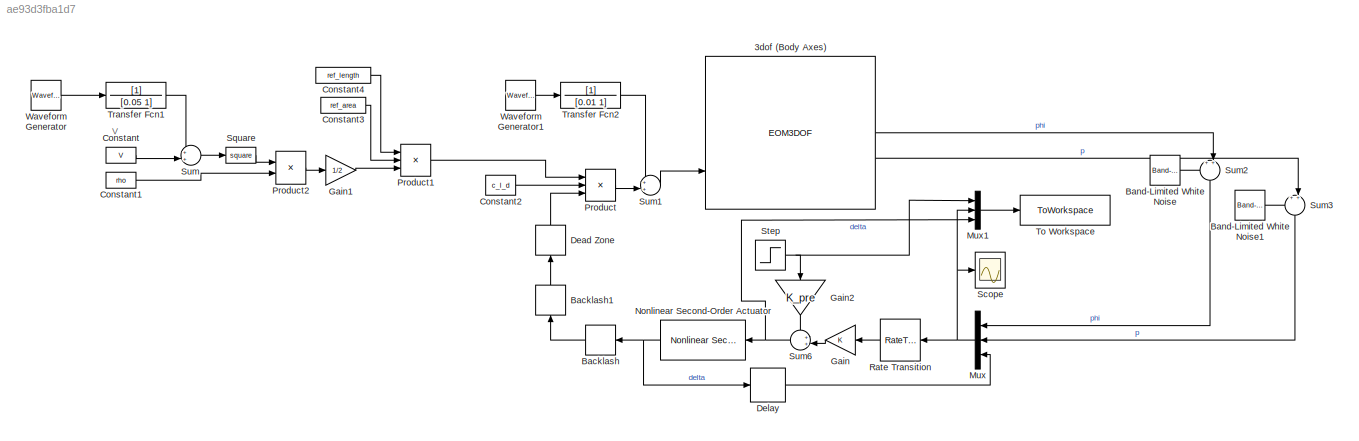
MODEL slx_ae93d3fba1d7
KIND model
CONFIG AbsTol = auto
CONFIG EnableMultiTasking = off
CONFIG FixedStep = auto
CONFIG MaxStep = 1e-4
CONFIG MinStep = auto
CONFIG RelTol = 1e-3
CONFIG SampleTimeConstraint = Unconstrained
CONFIG SolverName = VariableStepAuto
CONFIG StartTime = 0.0
CONFIG StopTime = 10.0
BLOCK [EOM3DOF] 3dof (Body Axes)
  Iyy = J
  NameLocation = top
  g = 0
  mass = 100
  v_ini = 0
BLOCK [Backlash] Backlash
  BacklashWidth = pi/180 * 0.5
  NameLocation = top
BLOCK [Backlash] Backlash1
  BacklashWidth = deg2rad(backlash)
  NameLocation = right
BLOCK [Reference] Band-Limited White Noise  REF=simulink/Sources/Band-Limited
White Noise
  SourceBlock = simulink/Sources/Band-Limited\nWhite Noise
  SourceType = Band-Limited White Noise.
BLOCK [Reference] Band-Limited White Noise1  REF=simulink/Sources/Band-Limited
White Noise
  SourceBlock = simulink/Sources/Band-Limited\nWhite Noise
  SourceType = Band-Limited White Noise.
BLOCK [Constant] Constant
  Value = V
BLOCK [Constant] Constant1
  Value = rho
BLOCK [Constant] Constant2
  Value = c_l_d
BLOCK [Constant] Constant3
  Value = ref_area
BLOCK [Constant] Constant4
  Value = ref_length
BLOCK [DeadZone] Dead Zone
  LowerValue = -deg2rad(backlash)
  NameLocation = right
  UpperValue = deg2rad(backlash)
BLOCK [Delay] Delay
  DelayLength = 1
  InputPortMap = u0
  SampleTime = 0.005
BLOCK [Gain] Gain
  Gain = K
  Multiplication = Matrix(K*u)
  NameLocation = top
BLOCK [Gain] Gain1
  Gain = 1/2
BLOCK [Gain] Gain2
  Gain = K_pre
  NameLocation = left
BLOCK [Mux] Mux
  DisplayOption = bar
  Inputs = 3
  NameLocation = top
BLOCK [Mux] Mux1
  DisplayOption = bar
  Inputs = 3
BLOCK [Reference] Nonlinear Second-Order Actuator  REF=aerolibactuator/Nonlinear Second-Order Actuator
  NameLocation = top
  SourceBlock = aerolibactuator/Nonlinear Second-Order Actuator
  SourceType = NonlinearSecondOrderActuator
BLOCK [Product] Product
  Inputs = 3
BLOCK [Product] Product1
  Inputs = 3
BLOCK [Product] Product2
BLOCK [RateTransition] Rate Transition
  NameLocation = top
  OutPortSampleTime = 0.005
BLOCK [Scope] Scope
  Floating = off
  NumInputPorts = 1
  ScopeSpecificationString = Simulink.scopes.TimeScopeBlockCfg('CurrentConfiguration', extmgr.ConfigurationSet(extmgr.Configuration('Core','General UI',true),extmgr.Configuration('Core','Source UI',true),extmgr.Configuration('Sources','WiredSimulink',true),extmgr.Configuration('Visuals','Time Domain',true,'SerializedDisplays',{struct('MinYLimReal','-0.3241','MaxYLimReal','1.59116','YLabelReal','','MinYLimMag','0.00000','MaxYL...<+1565ch>
BLOCK [Math] Square
  Operator = square
BLOCK [Step] Step
  SampleTime = 0
BLOCK [Sum] Sum
  Inputs = ++|
BLOCK [Sum] Sum1
  Inputs = ++|
BLOCK [Sum] Sum2
  Inputs = ++|
  NameLocation = left
BLOCK [Sum] Sum3
  Inputs = ++|
  NameLocation = left
BLOCK [Sum] Sum6
  Inputs = ++|
  NameLocation = top
BLOCK [ToWorkspace] To Workspace
  FixptAsFi = on
  MaxDataPoints = inf
  SampleTime = -1
  VariableName = simout
BLOCK [TransferFcn] Transfer Fcn1
  Denominator = [0.05 1]
BLOCK [TransferFcn] Transfer Fcn2
  Denominator = [0.01 1]
BLOCK [Reference] Waveform Generator  REF=simulink/Sources/Waveform
Generator
  SourceBlock = simulink/Sources/Waveform\nGenerator
  SourceType = WaveformGenerator
BLOCK [Reference] Waveform Generator1  REF=simulink/Sources/Waveform
Generator
  SourceBlock = simulink/Sources/Waveform\nGenerator
  SourceType = WaveformGenerator
ANNOTATION (root): V
LINE 3dof (Body Axes):1 -> Sum2:2
LINE 3dof (Body Axes):2 -> Sum3:2
LINE Backlash1:1 -> Dead Zone:1
LINE Backlash:1 -> Backlash1:1
LINE Band-Limited White Noise1:1 -> Sum3:1
LINE Band-Limited White Noise:1 -> Sum2:1
LINE Constant1:1 -> Product2:2
LINE Constant2:1 -> Product:2
LINE Constant3:1 -> Product1:2
LINE Constant4:1 -> Product1:1
LINE Constant:1 -> Sum:2
LINE Dead Zone:1 -> Product:3
LINE Delay:1 -> Mux:3
LINE Gain1:1 -> Product1:3
LINE Gain2:1 -> Sum6:1
LINE Gain:1 -> Sum6:2
LINE Mux1:1 -> To Workspace:1
NET Mux:1 -> Mux1:2, Rate Transition:1, Scope:1
NET Nonlinear Second-Order Actuator:1 -> Backlash:1, Delay:1
LINE Product1:1 -> Product:1
LINE Product2:1 -> Gain1:1
LINE Product:1 -> Sum1:2
LINE Rate Transition:1 -> Gain:1
LINE Square:1 -> Product2:1
NET Step:1 -> Gain2:1, Mux1:1
LINE Sum1:1 -> 3dof (Body Axes):3
LINE Sum2:1 -> Mux:1
LINE Sum3:1 -> Mux:2
NET Sum6:1 -> Mux1:3, Nonlinear Second-Order Actuator:1
LINE Sum:1 -> Square:1
LINE Transfer Fcn1:1 -> Sum:1
LINE Transfer Fcn2:1 -> Sum1:1
LINE Waveform Generator1:1 -> Transfer Fcn2:1
LINE Waveform Generator:1 -> Transfer Fcn1:1
note: NET lines group one-source signal fan-out (src -> all destinations, sorted); 1:1 wires keep LINE
